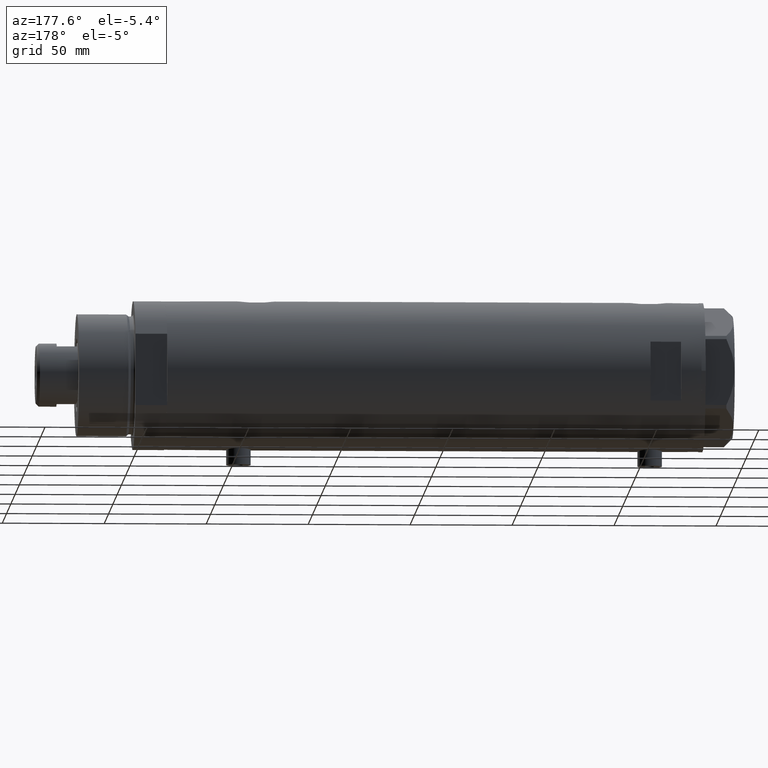
[diagram: clean part render]
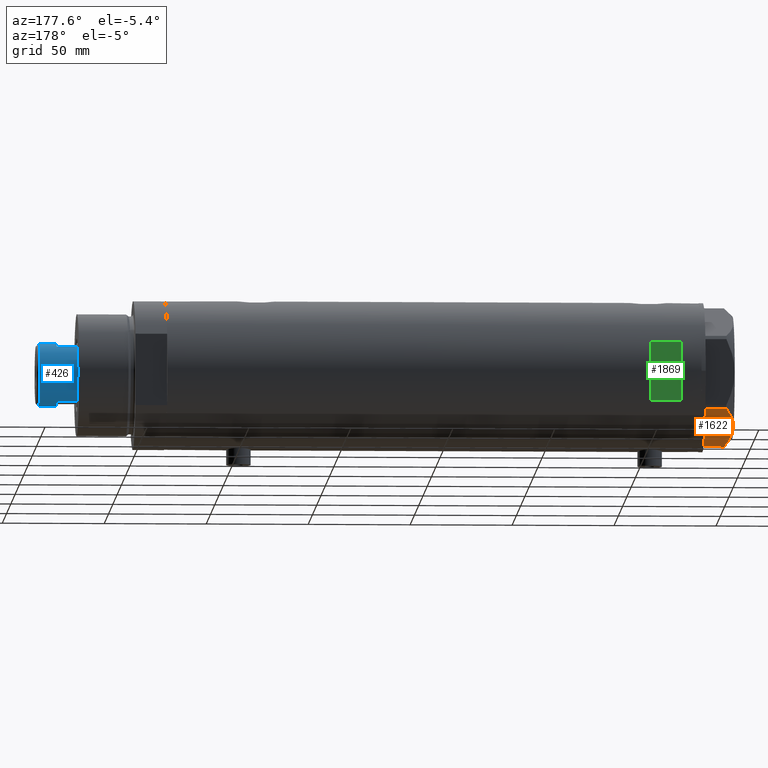
[diagram: same view with three faces highlighted in distinct colors, each labeled with its STEP entity id]
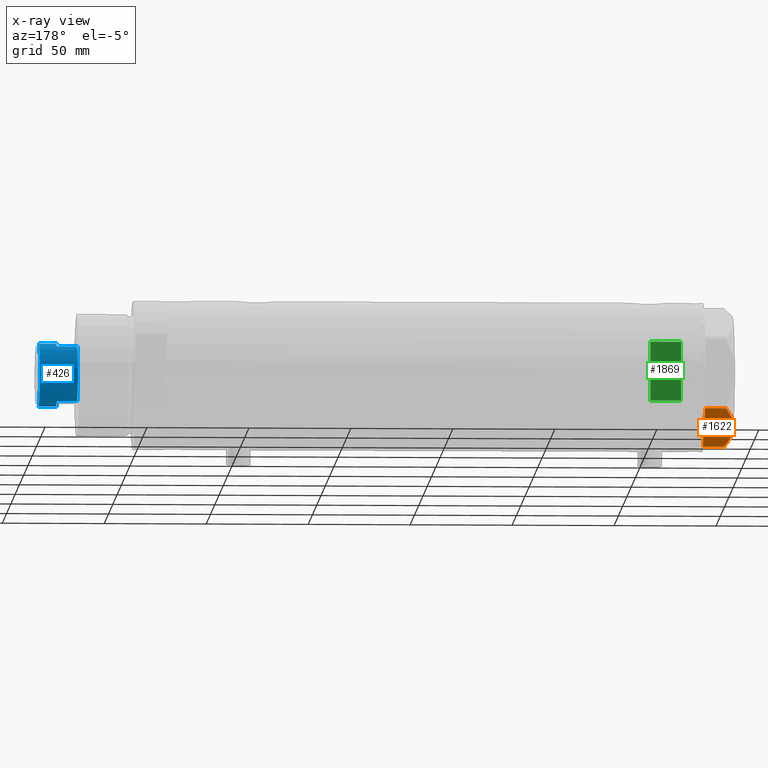
[diagram: x-ray of the same camera — body ghosted, the three highlighted faces saturated]
A machine part, auxiliary view with three faces highlighted in distinct colors.
The next image is the same camera in x-ray (body ghosted, the three faces saturated) — at least one of them is partly hidden behind the body in this view.
Their STEP definitions:

[orange] entity #1622 — the highlighted planar face has unit normal (0, -0.5, 0.866).
#37 = VERTEX_POINT ( 'NONE', #2143 ) ;
#172 = EDGE_LOOP ( 'NONE', ( #2969, #3839, #2590, #1844, #1627 ) ) ;
#174 = CARTESIAN_POINT ( 'NONE',  ( 19.88494945387372681, 23.16043523136144699, 14.00566141361760941 ) ) ;
#251 = EDGE_CURVE ( 'NONE', #531, #2411, #1794, .T. ) ;
#298 = LINE ( 'NONE', #4444, #2282 ) ;
#347 = DIRECTION ( 'NONE',  ( 0.8660254037844387076, -0.4999999999999997780, 0.000000000000000000 ) ) ;
#360 = CARTESIAN_POINT ( 'NONE',  ( 3.192653970408704023, 32.79773652213274460, 11.56973717813891156 ) ) ;
#385 = CARTESIAN_POINT ( 'NONE',  ( 0.9699484522423541533, 34.08101615137535845, 10.40518423703812090 ) ) ;
#509 = CARTESIAN_POINT ( 'NONE',  ( 14.99999999999999467, 25.98076211353316367, 14.50000000000000000 ) ) ;
#523 = CARTESIAN_POINT ( 'NONE',  ( 21.07077273125423034, 22.47579984295449407, 13.71922620632299505 ) ) ;
#531 = VERTEX_POINT ( 'NONE', #3438 ) ;
#538 = B_SPLINE_CURVE_WITH_KNOTS ( 'NONE', 3,
 ( #4209, #880, #1881, #523, #174, #3130, #2751, #851, #4614, #509 ),
 .UNSPECIFIED., .F., .F.,
 ( 4, 2, 2, 2, 4 ),
 ( 0.001230196178133409956, 0.009592363676680764825, 0.01377344742595444649, 0.01586398930059127951, 0.01795453117522811601 ),
 .UNSPECIFIED. ) ;
#580 = VERTEX_POINT ( 'NONE', #2790 ) ;
#741 = CARTESIAN_POINT ( 'NONE',  ( 14.99999999999999467, 25.98076211353316367, 14.50000000000000000 ) ) ;
#834 = EDGE_CURVE ( 'NONE', #868, #580, #538, .T. ) ;
#851 = CARTESIAN_POINT ( 'NONE',  ( 16.22616138060133295, 25.27283751037305493, 14.47500996539161555 ) ) ;
#868 = VERTEX_POINT ( 'NONE', #1986 ) ;
#880 = CARTESIAN_POINT ( 'NONE',  ( 26.82462797925471065, 19.15380996664327284, 11.61522964162834981 ) ) ;
#1056 = CARTESIAN_POINT ( 'NONE',  ( 4.902385341345770975, 31.81062265488028018, 12.31959434659136576 ) ) ;
#1092 = PLANE ( 'NONE',  #2051 ) ;
#1101 = CARTESIAN_POINT ( 'NONE',  ( 5.477433827014328571, 31.47861825688246640, 12.55468001512311105 ) ) ;
#1141 = B_SPLINE_CURVE_WITH_KNOTS ( 'NONE', 3,
 ( #741, #4347, #1753, #2943, #4439, #1101, #1056, #360, #3705, #385 ),
 .UNSPECIFIED., .F., .F.,
 ( 4, 2, 2, 2, 4 ),
 ( 0.01795453117522811601, 0.02625795893839555362, 0.02833381587918740868, 0.03040967281997927762, 0.03456138670156298776 ),
 .UNSPECIFIED. ) ;
#1196 = CARTESIAN_POINT ( 'NONE',  ( 0.9699484522385712904, 34.08101615137753981, 0.000000000000000000 ) ) ;
#1622 = ADVANCED_FACE ( 'NONE', ( #3648 ), #1092, .F. ) ;
#1627 = ORIENTED_EDGE ( 'NONE', *, *, #3343, .F. ) ;
#1647 = CARTESIAN_POINT ( 'NONE',  ( 29.03005154776139207, 17.88050807568879463, 14.50000000000000000 ) ) ;
#1753 = CARTESIAN_POINT ( 'NONE',  ( 10.17780078270602040, 28.76486012972386064, 14.10092492974158773 ) ) ;
#1794 = LINE ( 'NONE', #1817, #1919 ) ;
#1817 = CARTESIAN_POINT ( 'NONE',  ( 29.99999999999999289, 17.32050807568878170, 0.000000000000000000 ) ) ;
#1844 = ORIENTED_EDGE ( 'NONE', *, *, #1849, .T. ) ;
#1849 = EDGE_CURVE ( 'NONE', #2411, #37, #298, .T. ) ;
#1881 = CARTESIAN_POINT ( 'NONE',  ( 24.56959650245796567, 20.45575299680294634, 12.63511531451932690 ) ) ;
#1919 = VECTOR ( 'NONE', #4765, 1000.000000000000227 ) ;
#1986 = CARTESIAN_POINT ( 'NONE',  ( 29.03005154776155194, 17.88050807568870226, 10.40518423703596085 ) ) ;
#2051 = AXIS2_PLACEMENT_3D ( 'NONE', #3736, #2184, #347 ) ;
#2081 = EDGE_CURVE ( 'NONE', #868, #531, #3516, .T. ) ;
#2143 = CARTESIAN_POINT ( 'NONE',  ( 0.9699484522423541533, 34.08101615137535845, 10.40518423703812090 ) ) ;
#2184 = DIRECTION ( 'NONE',  ( -0.4999999999999998335, -0.8660254037844388186, 0.000000000000000000 ) ) ;
#2282 = VECTOR ( 'NONE', #4072, 1000.000000000000000 ) ;
#2411 = VERTEX_POINT ( 'NONE', #1196 ) ;
#2590 = ORIENTED_EDGE ( 'NONE', *, *, #251, .T. ) ;
#2751 = CARTESIAN_POINT ( 'NONE',  ( 17.45962150578836258, 24.56069897506165489, 14.37423503257921986 ) ) ;
#2790 = CARTESIAN_POINT ( 'NONE',  ( 14.99999999999999467, 25.98076211353316367, 14.50000000000000000 ) ) ;
#2943 = CARTESIAN_POINT ( 'NONE',  ( 7.227334865373877371, 30.46831242133036355, 13.19311392138218508 ) ) ;
#2969 = ORIENTED_EDGE ( 'NONE', *, *, #834, .F. ) ;
#3130 = CARTESIAN_POINT ( 'NONE',  ( 18.07068105770096267, 24.20790357827400996, 14.29910535634586743 ) ) ;
#3343 = EDGE_CURVE ( 'NONE', #580, #37, #1141, .T. ) ;
#3438 = CARTESIAN_POINT ( 'NONE',  ( 29.03005154776139207, 17.88050807568879463, 0.000000000000000000 ) ) ;
#3516 = LINE ( 'NONE', #1647, #3997 ) ;
#3648 = FACE_OUTER_BOUND ( 'NONE', #172, .T. ) ;
#3705 = CARTESIAN_POINT ( 'NONE',  ( 2.073315687469442281, 33.44398678110199086, 11.01056656432865388 ) ) ;
#3736 = CARTESIAN_POINT ( 'NONE',  ( 29.99999999999999289, 17.32050807568878170, 14.50000000000000000 ) ) ;
#3839 = ORIENTED_EDGE ( 'NONE', *, *, #2081, .T. ) ;
#3997 = VECTOR ( 'NONE', #4627, 1000.000000000000000 ) ;
#4072 = DIRECTION ( 'NONE',  ( 0.000000000000000000, 0.000000000000000000, 1.000000000000000000 ) ) ;
#4209 = CARTESIAN_POINT ( 'NONE',  ( 29.03005154776155194, 17.88050807568870226, 10.40518423703596085 ) ) ;
#4347 = CARTESIAN_POINT ( 'NONE',  ( 12.56968319190193029, 27.38390617690464879, 14.50000000000000711 ) ) ;
#4439 = CARTESIAN_POINT ( 'NONE',  ( 6.639151835535789026, 30.80790005194015535, 12.99122625442314671 ) ) ;
#4444 = CARTESIAN_POINT ( 'NONE',  ( 0.9699484522385712904, 34.08101615137753981, 14.50000000000000000 ) ) ;
#4614 = CARTESIAN_POINT ( 'NONE',  ( 15.61187731150015878, 25.62749458302751293, 14.50000000000000355 ) ) ;
#4627 = DIRECTION ( 'NONE',  ( 0.000000000000000000, 0.000000000000000000, -1.000000000000000000 ) ) ;
#4765 = DIRECTION ( 'NONE',  ( -0.8660254037844387076, 0.4999999999999997780, 0.000000000000000000 ) ) ;

[blue] entity #426 — the highlighted cylindrical surface (edge-blend (fillet) strip) has radius 15.5 mm, axis along (-1, -0, 0).
#126 = VECTOR ( 'NONE', #2926, 1000.000000000000000 ) ;
#148 = ORIENTED_EDGE ( 'NONE', *, *, #1007, .T. ) ;
#267 = DIRECTION ( 'NONE',  ( -0.000000000000000000, -0.000000000000000000, -1.000000000000000000 ) ) ;
#344 = LINE ( 'NONE', #1443, #126 ) ;
#353 = DIRECTION ( 'NONE',  ( 0.000000000000000000, 0.000000000000000000, -1.000000000000000000 ) ) ;
#373 = AXIS2_PLACEMENT_3D ( 'NONE', #3397, #1548, #1185 ) ;
#426 = ADVANCED_FACE ( 'NONE', ( #1417 ), #2893, .T. ) ;
#495 = EDGE_LOOP ( 'NONE', ( #3031, #148, #3154, #4395, #3439, #3006, #1514, #4694 ) ) ;
#529 = DIRECTION ( 'NONE',  ( -0.000000000000000000, -0.000000000000000000, -1.000000000000000000 ) ) ;
#555 = VERTEX_POINT ( 'NONE', #4748 ) ;
#569 = VERTEX_POINT ( 'NONE', #669 ) ;
#588 = VERTEX_POINT ( 'NONE', #3967 ) ;
#669 = CARTESIAN_POINT ( 'NONE',  ( -15.49999999999999822, 0.000000000000000000, 297.6200000000000614 ) ) ;
#730 = VERTEX_POINT ( 'NONE', #3489 ) ;
#739 = AXIS2_PLACEMENT_3D ( 'NONE', #2957, #353, #1816 ) ;
#791 = DIRECTION ( 'NONE',  ( -0.000000000000000000, -0.000000000000000000, -1.000000000000000000 ) ) ;
#873 = VERTEX_POINT ( 'NONE', #3763 ) ;
#1007 = EDGE_CURVE ( 'NONE', #3421, #555, #1187, .T. ) ;
#1039 = EDGE_CURVE ( 'NONE', #555, #873, #1132, .T. ) ;
#1132 = CIRCLE ( 'NONE', #2362, 15.50000000000000000 ) ;
#1185 = DIRECTION ( 'NONE',  ( 1.000000000000000000, 0.000000000000000000, 0.000000000000000000 ) ) ;
#1187 = LINE ( 'NONE', #3404, #2518 ) ;
#1212 = VECTOR ( 'NONE', #791, 1000.000000000000000 ) ;
#1331 = CARTESIAN_POINT ( 'NONE',  ( 0.000000000000000000, 0.000000000000000000, 279.0199999999999818 ) ) ;
#1333 = EDGE_CURVE ( 'NONE', #873, #4346, #344, .T. ) ;
#1341 = EDGE_CURVE ( 'NONE', #569, #3421, #1577, .T. ) ;
#1366 = CIRCLE ( 'NONE', #373, 15.50000000000000000 ) ;
#1396 = CARTESIAN_POINT ( 'NONE',  ( 0.000000000000000000, 0.000000000000000000, 289.0199999999999818 ) ) ;
#1417 = FACE_OUTER_BOUND ( 'NONE', #495, .T. ) ;
#1438 = LINE ( 'NONE', #2920, #2844 ) ;
#1443 = CARTESIAN_POINT ( 'NONE',  ( 13.48630416385452868, 7.639999999999997904, 289.0199999999999818 ) ) ;
#1514 = ORIENTED_EDGE ( 'NONE', *, *, #3137, .T. ) ;
#1548 = DIRECTION ( 'NONE',  ( 0.000000000000000000, 0.000000000000000000, 1.000000000000000000 ) ) ;
#1576 = CARTESIAN_POINT ( 'NONE',  ( 13.48630416385452868, 7.639999999999997904, 279.0199999999999818 ) ) ;
#1577 = CIRCLE ( 'NONE', #739, 15.49999999999999822 ) ;
#1613 = DIRECTION ( 'NONE',  ( 0.000000000000000000, 0.000000000000000000, 1.000000000000000000 ) ) ;
#1816 = DIRECTION ( 'NONE',  ( 1.000000000000000000, 0.000000000000000000, 0.000000000000000000 ) ) ;
#1911 = CARTESIAN_POINT ( 'NONE',  ( 0.000000000000000000, 0.000000000000000000, 289.0199999999999818 ) ) ;
#1956 = VERTEX_POINT ( 'NONE', #3041 ) ;
#2289 = DIRECTION ( 'NONE',  ( -1.000000000000000000, 0.000000000000000000, 0.000000000000000000 ) ) ;
#2362 = AXIS2_PLACEMENT_3D ( 'NONE', #1911, #1613, #3100 ) ;
#2483 = EDGE_CURVE ( 'NONE', #1956, #730, #2617, .T. ) ;
#2518 = VECTOR ( 'NONE', #529, 1000.000000000000000 ) ;
#2617 = LINE ( 'NONE', #4115, #1212 ) ;
#2667 = AXIS2_PLACEMENT_3D ( 'NONE', #1331, #4611, #3524 ) ;
#2783 = EDGE_CURVE ( 'NONE', #4346, #730, #4403, .T. ) ;
#2844 = VECTOR ( 'NONE', #267, 1000.000000000000000 ) ;
#2893 = CYLINDRICAL_SURFACE ( 'NONE', #3541, 15.49999999999999822 ) ;
#2920 = CARTESIAN_POINT ( 'NONE',  ( -15.49999999999999822, 0.000000000000000000, 289.0199999999999818 ) ) ;
#2926 = DIRECTION ( 'NONE',  ( -0.000000000000000000, -0.000000000000000000, -1.000000000000000000 ) ) ;
#2957 = CARTESIAN_POINT ( 'NONE',  ( 0.000000000000000000, 0.000000000000000000, 297.6200000000000614 ) ) ;
#3006 = ORIENTED_EDGE ( 'NONE', *, *, #2483, .F. ) ;
#3031 = ORIENTED_EDGE ( 'NONE', *, *, #1341, .T. ) ;
#3041 = CARTESIAN_POINT ( 'NONE',  ( -13.48630416385452868, 7.639999999999998792, 289.0199999999999818 ) ) ;
#3100 = DIRECTION ( 'NONE',  ( 1.000000000000000000, 0.000000000000000000, 0.000000000000000000 ) ) ;
#3137 = EDGE_CURVE ( 'NONE', #1956, #588, #1366, .T. ) ;
#3154 = ORIENTED_EDGE ( 'NONE', *, *, #1039, .T. ) ;
#3397 = CARTESIAN_POINT ( 'NONE',  ( 0.000000000000000000, 0.000000000000000000, 289.0199999999999818 ) ) ;
#3404 = CARTESIAN_POINT ( 'NONE',  ( 15.49999999999999822, 1.898202538678397163E-15, 289.0199999999999818 ) ) ;
#3421 = VERTEX_POINT ( 'NONE', #4772 ) ;
#3439 = ORIENTED_EDGE ( 'NONE', *, *, #2783, .T. ) ;
#3489 = CARTESIAN_POINT ( 'NONE',  ( -13.48630416385452513, 7.639999999999973923, 279.0199999999999818 ) ) ;
#3524 = DIRECTION ( 'NONE',  ( 1.000000000000000000, 0.000000000000000000, 0.000000000000000000 ) ) ;
#3541 = AXIS2_PLACEMENT_3D ( 'NONE', #1396, #4460, #2289 ) ;
#3763 = CARTESIAN_POINT ( 'NONE',  ( 13.48630416385452868, 7.639999999999997904, 289.0199999999999818 ) ) ;
#3967 = CARTESIAN_POINT ( 'NONE',  ( -15.50000000000000178, 0.000000000000000000, 289.0199999999999818 ) ) ;
#4091 = EDGE_CURVE ( 'NONE', #569, #588, #1438, .T. ) ;
#4115 = CARTESIAN_POINT ( 'NONE',  ( -13.48630416385452868, 7.639999999999998792, 289.0199999999999818 ) ) ;
#4346 = VERTEX_POINT ( 'NONE', #1576 ) ;
#4395 = ORIENTED_EDGE ( 'NONE', *, *, #1333, .T. ) ;
#4403 = CIRCLE ( 'NONE', #2667, 15.49999999999998579 ) ;
#4460 = DIRECTION ( 'NONE',  ( -0.000000000000000000, -0.000000000000000000, -1.000000000000000000 ) ) ;
#4611 = DIRECTION ( 'NONE',  ( 0.000000000000000000, 0.000000000000000000, 1.000000000000000000 ) ) ;
#4694 = ORIENTED_EDGE ( 'NONE', *, *, #4091, .F. ) ;
#4748 = CARTESIAN_POINT ( 'NONE',  ( 15.50000000000000178, 1.898202538678397557E-15, 289.0199999999999818 ) ) ;
#4772 = CARTESIAN_POINT ( 'NONE',  ( 15.49999999999999822, 1.898202538678397163E-15, 297.6200000000000614 ) ) ;

[green] entity #1869 — the highlighted planar face has unit normal (0, -1, -0).
#283 = DIRECTION ( 'NONE',  ( 1.000000000000000000, -0.000000000000000000, -0.000000000000000000 ) ) ;
#313 = LINE ( 'NONE', #2522, #762 ) ;
#343 = FACE_OUTER_BOUND ( 'NONE', #2179, .T. ) ;
#368 = LINE ( 'NONE', #1477, #3932 ) ;
#381 = LINE ( 'NONE', #2548, #3783 ) ;
#725 = DIRECTION ( 'NONE',  ( 0.000000000000000000, 0.000000000000000000, -1.000000000000000000 ) ) ;
#762 = VECTOR ( 'NONE', #283, 1000.000000000000000 ) ;
#1211 = ORIENTED_EDGE ( 'NONE', *, *, #4645, .T. ) ;
#1477 = CARTESIAN_POINT ( 'NONE',  ( -14.49137674618942739, 33.50000000000000000, -130.9749999999999943 ) ) ;
#1500 = CARTESIAN_POINT ( 'NONE',  ( -14.49137674618942739, 33.50000000000000000, 120.9749999999999943 ) ) ;
#1557 = LINE ( 'NONE', #2990, #2517 ) ;
#1704 = CARTESIAN_POINT ( 'NONE',  ( 14.49137674618942739, 33.50000000000000000, 120.9749999999999943 ) ) ;
#1869 = ADVANCED_FACE ( 'NONE', ( #343 ), #4737, .F. ) ;
#2049 = CARTESIAN_POINT ( 'NONE',  ( 14.49137674618942917, 33.50000000000000000, 105.9749999999999943 ) ) ;
#2179 = EDGE_LOOP ( 'NONE', ( #1211, #3576, #3392, #3045 ) ) ;
#2222 = CARTESIAN_POINT ( 'NONE',  ( -36.50000000000000000, 33.50000000000000000, 120.9749999999999943 ) ) ;
#2373 = EDGE_CURVE ( 'NONE', #3177, #3889, #1557, .T. ) ;
#2517 = VECTOR ( 'NONE', #3704, 1000.000000000000000 ) ;
#2522 = CARTESIAN_POINT ( 'NONE',  ( -36.50000000000000000, 33.50000000000000000, 120.9749999999999943 ) ) ;
#2548 = CARTESIAN_POINT ( 'NONE',  ( 14.49137674618942739, 33.50000000000000000, -130.9749999999999943 ) ) ;
#2821 = AXIS2_PLACEMENT_3D ( 'NONE', #2222, #3710, #725 ) ;
#2950 = DIRECTION ( 'NONE',  ( 0.000000000000000000, 0.000000000000000000, 1.000000000000000000 ) ) ;
#2990 = CARTESIAN_POINT ( 'NONE',  ( -36.50000000000000000, 33.50000000000000000, 105.9749999999999943 ) ) ;
#3015 = DIRECTION ( 'NONE',  ( -0.000000000000000000, -0.000000000000000000, -1.000000000000000000 ) ) ;
#3027 = EDGE_CURVE ( 'NONE', #3177, #3855, #368, .T. ) ;
#3045 = ORIENTED_EDGE ( 'NONE', *, *, #4454, .T. ) ;
#3177 = VERTEX_POINT ( 'NONE', #3893 ) ;
#3392 = ORIENTED_EDGE ( 'NONE', *, *, #3027, .T. ) ;
#3493 = VERTEX_POINT ( 'NONE', #1704 ) ;
#3576 = ORIENTED_EDGE ( 'NONE', *, *, #2373, .F. ) ;
#3704 = DIRECTION ( 'NONE',  ( 1.000000000000000000, -0.000000000000000000, -0.000000000000000000 ) ) ;
#3710 = DIRECTION ( 'NONE',  ( 0.000000000000000000, -1.000000000000000000, -0.000000000000000000 ) ) ;
#3783 = VECTOR ( 'NONE', #3015, 1000.000000000000000 ) ;
#3855 = VERTEX_POINT ( 'NONE', #1500 ) ;
#3889 = VERTEX_POINT ( 'NONE', #2049 ) ;
#3893 = CARTESIAN_POINT ( 'NONE',  ( -14.49137674618942917, 33.50000000000000000, 105.9749999999999943 ) ) ;
#3932 = VECTOR ( 'NONE', #2950, 1000.000000000000000 ) ;
#4454 = EDGE_CURVE ( 'NONE', #3855, #3493, #313, .T. ) ;
#4645 = EDGE_CURVE ( 'NONE', #3493, #3889, #381, .T. ) ;
#4737 = PLANE ( 'NONE',  #2821 ) ;